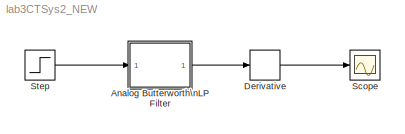
MODEL lab3CTSys2_NEW
KIND model
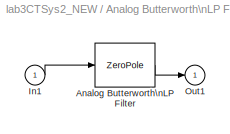
BLOCK [SubSystem] Analog Butterworth\nLP Filter
  FunctionWithSeparateData = off
  MaskCallbackString = |
  MaskDescription = Analog Butterworth low pass filter.\n\n(Requires Signal Processing Toolbox)
  MaskDisplay = plot(20*log10(w),20*log10(abs(h)))
  MaskEnableString = on,on
  MaskHelp = Butterworth low pass filter using MATLAB's butter command.
  MaskHideContents = off
  MaskIconFrame = on
  MaskIconOpaque = on
  MaskIconRotate = none
  MaskIconUnits = autoscale
  MaskInitialization = [z,p,k]=buttap(@2); z=@1*z; p=@1*p; k=real(prod(-p)); [num,den]=zp2tf(z,p,k); w=logspace(log10(@1/10),log10(10*@1),20); h=freqs(num,den,w);
  MaskPromptString = Cutoff frequency (rad/sec)|Order
  MaskStyleString = edit,edit
  MaskTabNameString = ,
  MaskToolTipString = on,on
  MaskTunableValueString = on,on
  MaskType = buttap
  MaskValueString = 2*pi|4
  MaskVarAliasString = ,
  MaskVisibilityString = on,on
  MinAlgLoopOccurrences = off
  Opaque = off
  Ports = [1, 1]
  PropExecContextOutsideSubsystem = off
  RTWSystemCode = Auto
  RequestExecContextInheritance = off
BLOCK [ZeroPole] Analog Butterworth\nLP Filter/Analog Butterworth\nLP Filter
  Gain = k
  Poles = p
  Zeros = z
BLOCK [Inport] Analog Butterworth\nLP Filter/In1
  IconDisplay = Port number
BLOCK [Outport] Analog Butterworth\nLP Filter/Out1
  IconDisplay = Port number
BLOCK [Derivative] Derivative
BLOCK [Scope] Scope
  DataFormat = Array
  Floating = off
  NumInputPorts = 1
  Ports = [1]
  SampleTime = 0
  TickLabels = on
BLOCK [Step] Step
  SampleTime = 0
  Time = 0.00001
LINE Analog Butterworth\nLP Filter/Analog Butterworth\nLP Filter:1 -> Analog Butterworth\nLP Filter/Out1:1
LINE Analog Butterworth\nLP Filter/In1:1 -> Analog Butterworth\nLP Filter/Analog Butterworth\nLP Filter:1
LINE Analog Butterworth\nLP Filter:1 -> Derivative:1
LINE Derivative:1 -> Scope:1
LINE Step:1 -> Analog Butterworth\nLP Filter:1
